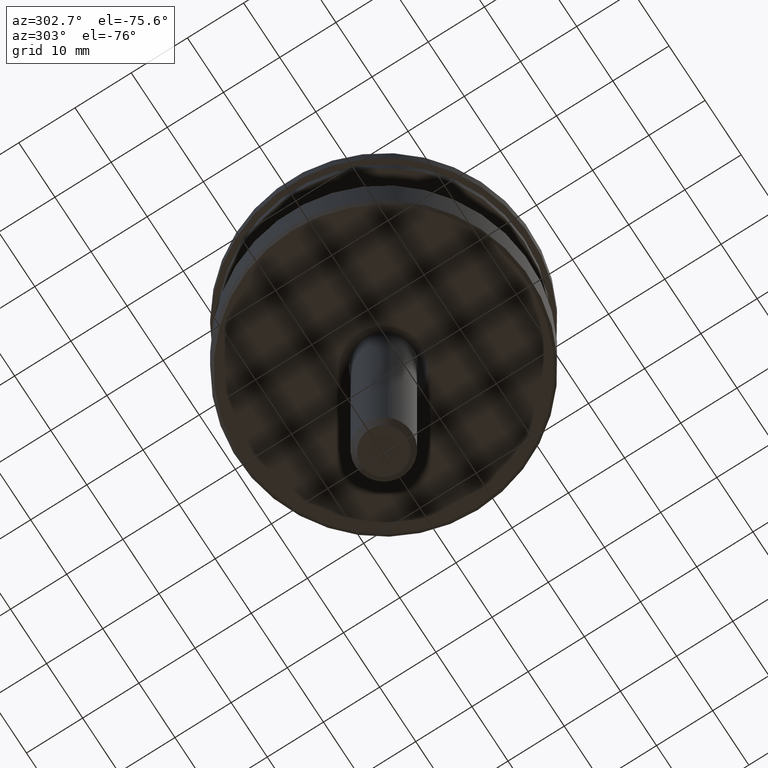
[diagram: clean part render]
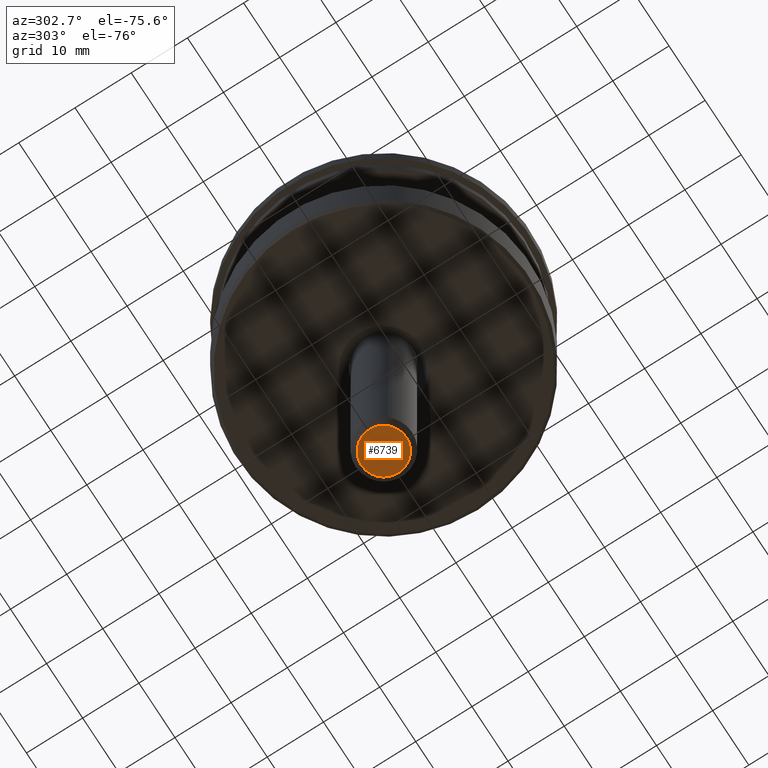
[diagram: same view with one face highlighted and labeled with its STEP entity id]
A machine part, auxiliary view. The second image highlights one B-rep face of the part: STEP entity #6739.
In plain terms, the highlighted planar face has unit normal (0, 0, -1).
Its self-contained STEP definition (entity closure, byte-faithful):
#793 = VERTEX_POINT ( 'NONE', #13021 ) ;
#2422 = DIRECTION ( 'NONE',  ( 0.0000000000000000000, -1.224646799147353200E-016, 1.000000000000000000 ) ) ;
#5804 = FACE_OUTER_BOUND ( 'NONE', #7597, .T. ) ;
#6509 = DIRECTION ( 'NONE',  ( 0.0000000000000000000, -1.000000000000000000, -1.224646799147353200E-016 ) ) ;
#6739 = ADVANCED_FACE ( 'NONE', ( #5804 ), #15226, .T. ) ;
#6914 = CARTESIAN_POINT ( 'NONE',  ( 0.0000000000000000000, -9.797174393178826100E-015, 80.00000000000000000 ) ) ;
#7435 = AXIS2_PLACEMENT_3D ( 'NONE', #6914, #12122, #11947 ) ;
#7597 = EDGE_LOOP ( 'NONE', ( #12971 ) ) ;
#8458 = CIRCLE ( 'NONE', #7435, 4.000000000000037300 ) ;
#9313 = EDGE_CURVE ( 'NONE', #793, #793, #8458, .T. ) ;
#11947 = DIRECTION ( 'NONE',  ( 0.0000000000000000000, -1.000000000000000000, 0.0000000000000000000 ) ) ;
#12122 = DIRECTION ( 'NONE',  ( 0.0000000000000000000, -1.224646799147353200E-016, 1.000000000000000000 ) ) ;
#12971 = ORIENTED_EDGE ( 'NONE', *, *, #9313, .T. ) ;
#13012 = AXIS2_PLACEMENT_3D ( 'NONE', #16546, #2422, #6509 ) ;
#13021 = CARTESIAN_POINT ( 'NONE',  ( 0.0000000000000000000, -4.000000000000047100, 80.00000000000000000 ) ) ;
#15226 = PLANE ( 'NONE',  #13012 ) ;
#16546 = CARTESIAN_POINT ( 'NONE',  ( 0.0000000000000000000, -9.797174393178826100E-015, 80.00000000000000000 ) ) ;